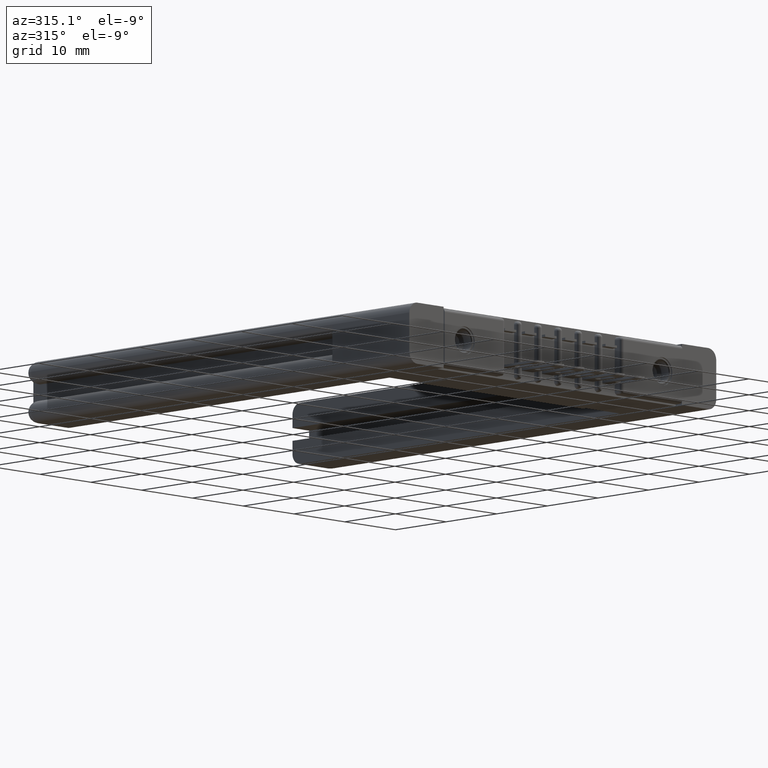
[diagram: clean part render]
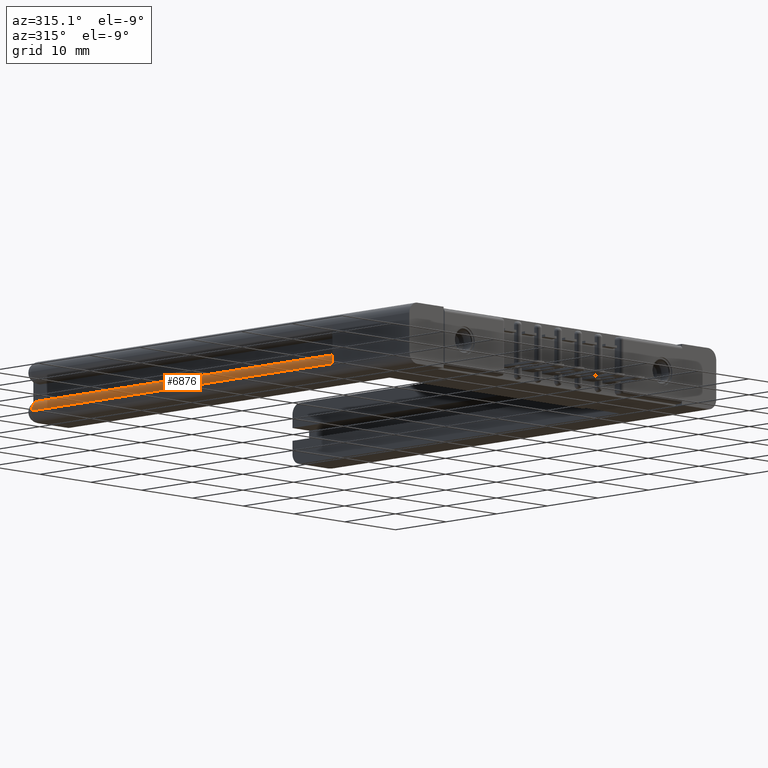
[diagram: same view with one face highlighted and labeled with its STEP entity id]
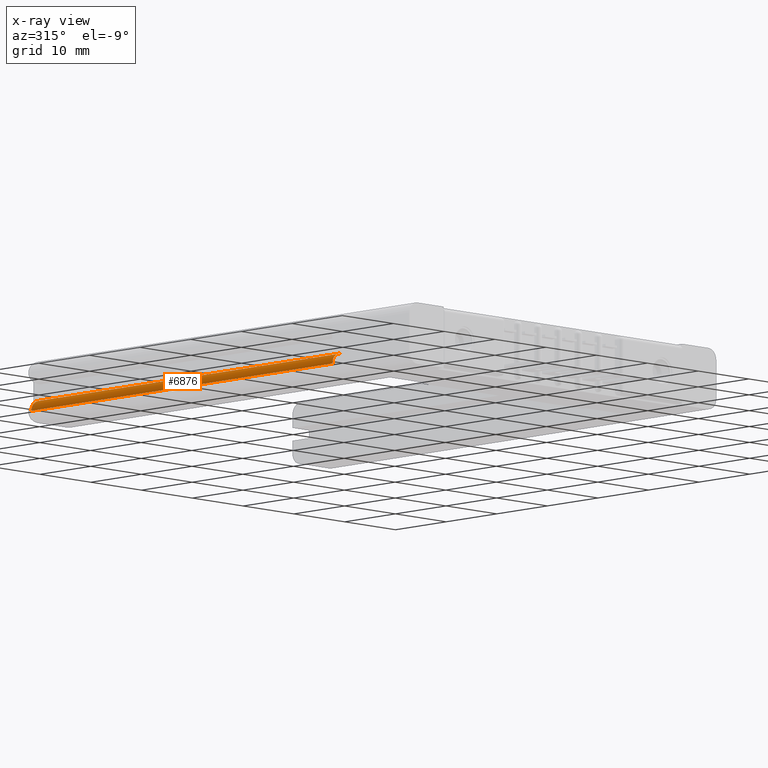
[diagram: x-ray of the same camera — body ghosted, the highlighted face saturated]
A machine part, auxiliary view. The second image highlights one B-rep face of the part: STEP entity #6876.
The next image is the same camera in x-ray: the body ghosted, the highlighted face saturated — about 0% of this face is hidden behind the body in this view.
In plain terms, the highlighted cylindrical surface (edge-blend (fillet) strip) has radius 1.5621 mm, axis along (0, 1, -0).
Its self-contained STEP definition (entity closure, byte-faithful):
#246 = DIRECTION ( 'NONE',  ( 0.0000000000000000000, 0.0000000000000000000, 1.000000000000000000 ) ) ;
#987 = DIRECTION ( 'NONE',  ( 7.120336040201873200E-016, 1.000000000000000000, -2.334284690065040000E-016 ) ) ;
#1035 = EDGE_CURVE ( 'NONE', #11689, #7714, #7106, .T. ) ;
#1985 = FACE_OUTER_BOUND ( 'NONE', #10275, .T. ) ;
#2282 = CARTESIAN_POINT ( 'NONE',  ( 0.0000000000000000000, 6.936332796413168700E-017, -0.2785000000000017500 ) ) ;
#2673 = VERTEX_POINT ( 'NONE', #8267 ) ;
#2693 = DIRECTION ( 'NONE',  ( -7.120336040201873200E-016, -1.000000000000000000, 2.334284690065040000E-016 ) ) ;
#2757 = DIRECTION ( 'NONE',  ( -7.120336040201874200E-016, -1.000000000000000000, 2.334284690065040000E-016 ) ) ;
#2775 = ORIENTED_EDGE ( 'NONE', *, *, #11722, .F. ) ;
#2798 = DIRECTION ( 'NONE',  ( 0.0000000000000000000, 0.0000000000000000000, -1.000000000000000000 ) ) ;
#3139 = CARTESIAN_POINT ( 'NONE',  ( 0.06150000000000015200, 0.6000000000000002000, -0.2790000000000015800 ) ) ;
#3784 = LINE ( 'NONE', #11875, #5825 ) ;
#4097 = CARTESIAN_POINT ( 'NONE',  ( 0.06150000000000370400, 2.940000000000007100, -0.2790000000000020200 ) ) ;
#4667 = CYLINDRICAL_SURFACE ( 'NONE', #6755, 0.06150000000000035300 ) ;
#4801 = VERTEX_POINT ( 'NONE', #10591 ) ;
#5327 = EDGE_CURVE ( 'NONE', #2673, #11689, #7539, .T. ) ;
#5825 = VECTOR ( 'NONE', #2693, 39.37007874015748100 ) ;
#6755 = AXIS2_PLACEMENT_3D ( 'NONE', #3139, #987, #8029 ) ;
#6791 = VECTOR ( 'NONE', #8404, 39.37007874015748100 ) ;
#6876 = ADVANCED_FACE ( 'NONE', ( #1985 ), #4667, .T. ) ;
#6903 = AXIS2_PLACEMENT_3D ( 'NONE', #9676, #2757, #2798 ) ;
#7106 = LINE ( 'NONE', #2282, #6791 ) ;
#7159 = ORIENTED_EDGE ( 'NONE', *, *, #1035, .F. ) ;
#7431 = CIRCLE ( 'NONE', #12679, 0.06150000000000035300 ) ;
#7539 = CIRCLE ( 'NONE', #6903, 0.06150000000000035300 ) ;
#7714 = VERTEX_POINT ( 'NONE', #8667 ) ;
#8029 = DIRECTION ( 'NONE',  ( 0.0000000000000000000, 0.0000000000000000000, 1.000000000000000000 ) ) ;
#8267 = CARTESIAN_POINT ( 'NONE',  ( 0.06149796744608740400, 0.6000000000000002000, -0.2175000000000007500 ) ) ;
#8404 = DIRECTION ( 'NONE',  ( 7.120336040201873200E-016, 1.000000000000000000, -2.334284690065040000E-016 ) ) ;
#8667 = CARTESIAN_POINT ( 'NONE',  ( 3.551402391763542400E-015, 2.940000000000007100, -0.2785000000000026300 ) ) ;
#9676 = CARTESIAN_POINT ( 'NONE',  ( 0.06149796744608740400, 0.6000000000000002000, -0.2790000000000015800 ) ) ;
#10275 = EDGE_LOOP ( 'NONE', ( #10756, #7159, #10676, #2775 ) ) ;
#10591 = CARTESIAN_POINT ( 'NONE',  ( 0.06149796744609068600, 2.940000000000007100, -0.2175000000000015800 ) ) ;
#10676 = ORIENTED_EDGE ( 'NONE', *, *, #5327, .F. ) ;
#10756 = ORIENTED_EDGE ( 'NONE', *, *, #11271, .T. ) ;
#10788 = CARTESIAN_POINT ( 'NONE',  ( 0.0000000000000000000, 0.5999999999999998700, -0.2785000000000021900 ) ) ;
#11108 = DIRECTION ( 'NONE',  ( -7.120336040201873200E-016, -1.000000000000000000, 2.334284690065040000E-016 ) ) ;
#11271 = EDGE_CURVE ( 'NONE', #4801, #7714, #7431, .T. ) ;
#11689 = VERTEX_POINT ( 'NONE', #10788 ) ;
#11722 = EDGE_CURVE ( 'NONE', #4801, #2673, #3784, .T. ) ;
#11875 = CARTESIAN_POINT ( 'NONE',  ( 0.06149796744608740400, 0.6000000000000002000, -0.2175000000000007500 ) ) ;
#12679 = AXIS2_PLACEMENT_3D ( 'NONE', #4097, #11108, #246 ) ;